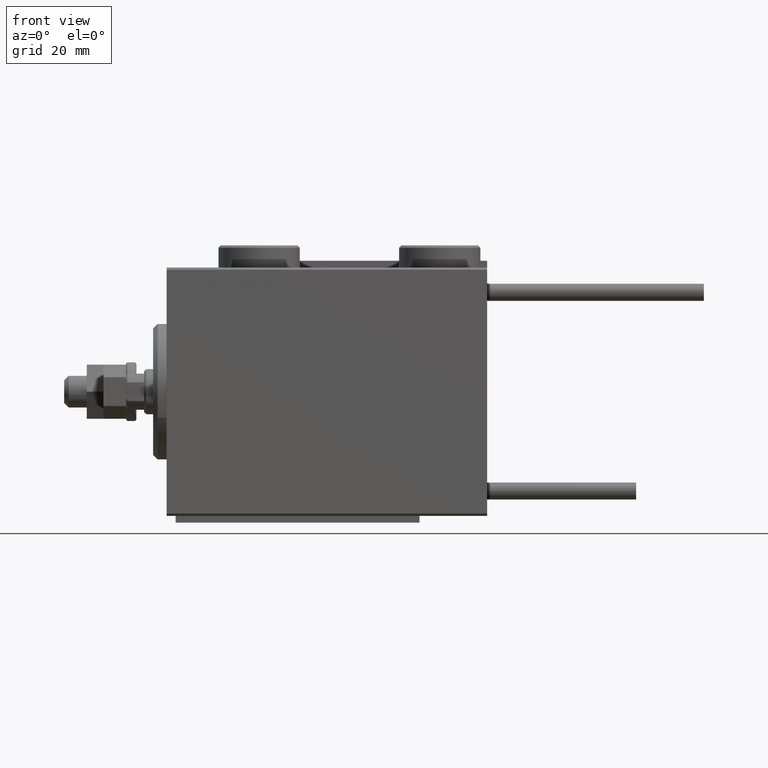
[diagram: clean part render]
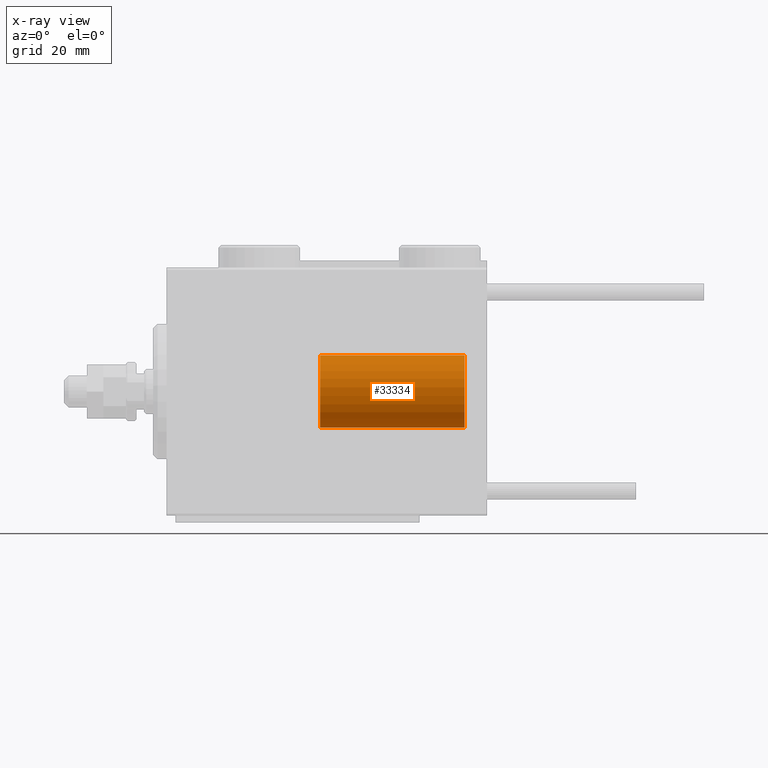
[diagram: x-ray — body ghosted, one internal face saturated and labeled with its STEP entity id]
A machine part, front view, then the same camera in x-ray: the body is ghosted and one INTERNAL B-rep face — a face not visible from any outside direction — is saturated and labeled: STEP entity #33334.
In plain terms, the highlighted cylindrical surface (edge-blend (fillet) strip) has radius 8 mm, axis along (1, -0, -0).
Its self-contained STEP definition (entity closure, byte-faithful):
#744 = VERTEX_POINT ( 'NONE', #35935 ) ;
#1346 = ORIENTED_EDGE ( 'NONE', *, *, #20467, .F. ) ;
#1503 = CARTESIAN_POINT ( 'NONE',  ( 0.000000000000000000, 0.000000000000000000, 32.00000000000000000 ) ) ;
#3857 = ORIENTED_EDGE ( 'NONE', *, *, #11752, .F. ) ;
#6539 = AXIS2_PLACEMENT_3D ( 'NONE', #13061, #37017, #21387 ) ;
#8921 = VECTOR ( 'NONE', #31999, 1000.000000000000000 ) ;
#9024 = CIRCLE ( 'NONE', #6539, 8.000000000000000000 ) ;
#11752 = EDGE_CURVE ( 'NONE', #744, #26650, #17825, .T. ) ;
#11951 = DIRECTION ( 'NONE',  ( -1.000000000000000000, 0.000000000000000000, 0.000000000000000000 ) ) ;
#13061 = CARTESIAN_POINT ( 'NONE',  ( 0.000000000000000000, 0.000000000000000000, 0.000000000000000000 ) ) ;
#13612 = EDGE_LOOP ( 'NONE', ( #3857, #1346, #51117, #27791 ) ) ;
#14426 = CARTESIAN_POINT ( 'NONE',  ( 8.000000000000000000, 9.797174393178825657E-16, 32.00000000000000000 ) ) ;
#14712 = CARTESIAN_POINT ( 'NONE',  ( -8.000000000000000000, 0.000000000000000000, 0.000000000000000000 ) ) ;
#14829 = CARTESIAN_POINT ( 'NONE',  ( 8.000000000000000000, 9.797174393178825657E-16, 0.000000000000000000 ) ) ;
#15863 = FACE_OUTER_BOUND ( 'NONE', #13612, .T. ) ;
#16128 = DIRECTION ( 'NONE',  ( -0.000000000000000000, -0.000000000000000000, -1.000000000000000000 ) ) ;
#17825 = LINE ( 'NONE', #14426, #49382 ) ;
#20467 = EDGE_CURVE ( 'NONE', #42396, #744, #25098, .T. ) ;
#20765 = CARTESIAN_POINT ( 'NONE',  ( -8.000000000000000000, 0.000000000000000000, 32.00000000000000000 ) ) ;
#20789 = DIRECTION ( 'NONE',  ( 0.000000000000000000, 0.000000000000000000, 1.000000000000000000 ) ) ;
#21387 = DIRECTION ( 'NONE',  ( 1.000000000000000000, 0.000000000000000000, 0.000000000000000000 ) ) ;
#21560 = DIRECTION ( 'NONE',  ( 1.000000000000000000, 0.000000000000000000, 0.000000000000000000 ) ) ;
#21754 = AXIS2_PLACEMENT_3D ( 'NONE', #1503, #20789, #21560 ) ;
#24419 = LINE ( 'NONE', #20765, #8921 ) ;
#25098 = CIRCLE ( 'NONE', #21754, 8.000000000000000000 ) ;
#26134 = DIRECTION ( 'NONE',  ( -0.000000000000000000, -0.000000000000000000, -1.000000000000000000 ) ) ;
#26650 = VERTEX_POINT ( 'NONE', #14829 ) ;
#27083 = AXIS2_PLACEMENT_3D ( 'NONE', #28349, #16128, #11951 ) ;
#27791 = ORIENTED_EDGE ( 'NONE', *, *, #43888, .T. ) ;
#28349 = CARTESIAN_POINT ( 'NONE',  ( 0.000000000000000000, 0.000000000000000000, 32.00000000000000000 ) ) ;
#29049 = CARTESIAN_POINT ( 'NONE',  ( -8.000000000000000000, 0.000000000000000000, 32.00000000000000000 ) ) ;
#31999 = DIRECTION ( 'NONE',  ( -0.000000000000000000, -0.000000000000000000, -1.000000000000000000 ) ) ;
#32012 = CYLINDRICAL_SURFACE ( 'NONE', #27083, 8.000000000000000000 ) ;
#33334 = ADVANCED_FACE ( 'NONE', ( #15863 ), #32012, .T. ) ;
#35935 = CARTESIAN_POINT ( 'NONE',  ( 8.000000000000000000, 9.797174393178825657E-16, 32.00000000000000000 ) ) ;
#37017 = DIRECTION ( 'NONE',  ( 0.000000000000000000, 0.000000000000000000, 1.000000000000000000 ) ) ;
#40332 = EDGE_CURVE ( 'NONE', #42396, #41649, #24419, .T. ) ;
#41649 = VERTEX_POINT ( 'NONE', #14712 ) ;
#42396 = VERTEX_POINT ( 'NONE', #29049 ) ;
#43888 = EDGE_CURVE ( 'NONE', #41649, #26650, #9024, .T. ) ;
#49382 = VECTOR ( 'NONE', #26134, 1000.000000000000000 ) ;
#51117 = ORIENTED_EDGE ( 'NONE', *, *, #40332, .T. ) ;